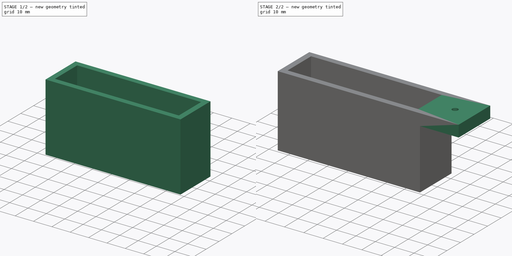
[diagram: build sequence overview — one tinted view per stage of 2, left to right]
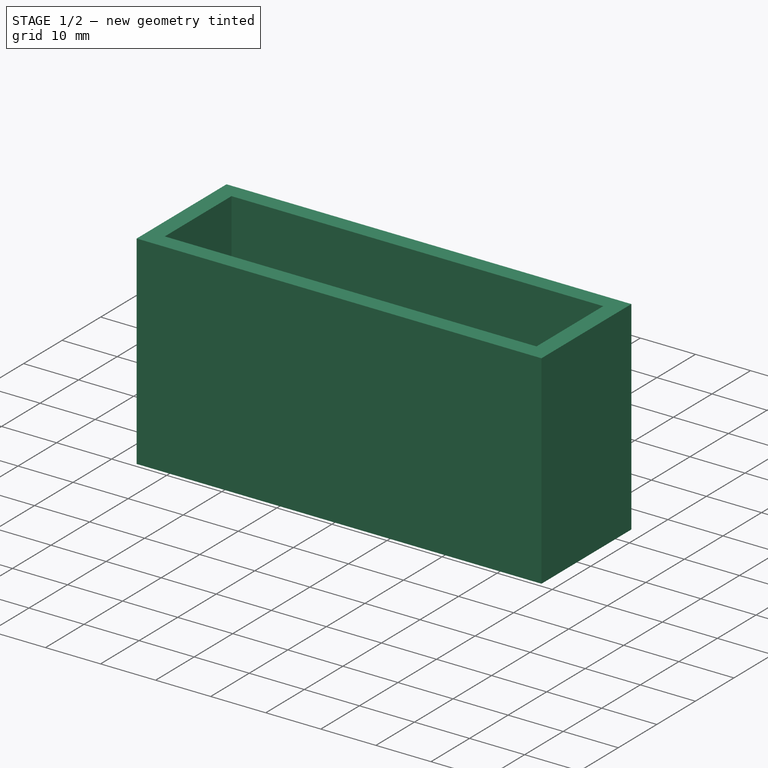
[diagram: stage 1 of 2 — iso view after this stage's code; geometry added in this stage tinted green]
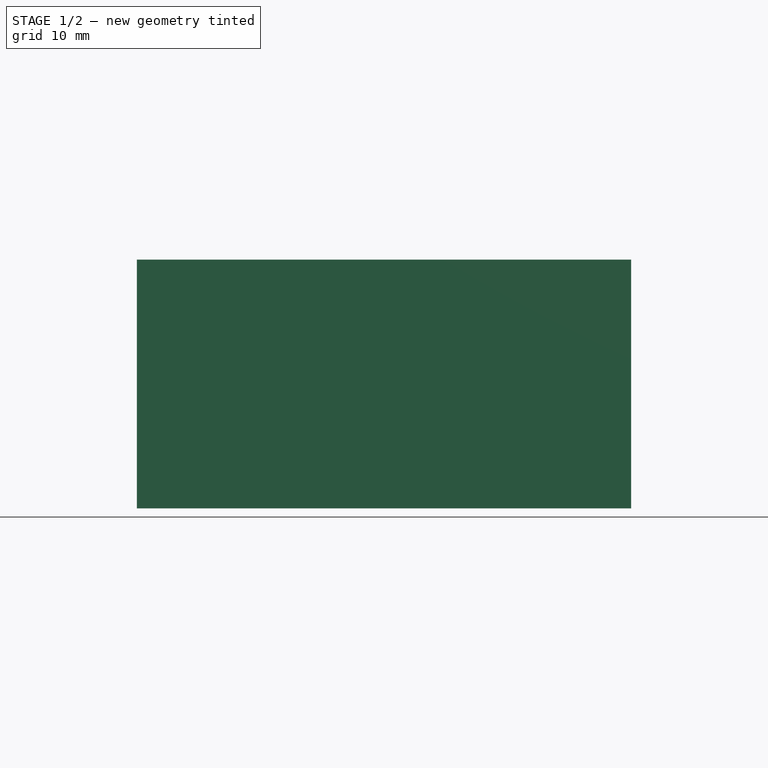
[diagram: stage 1 of 2 — front view after this stage's code; geometry added in this stage tinted green]
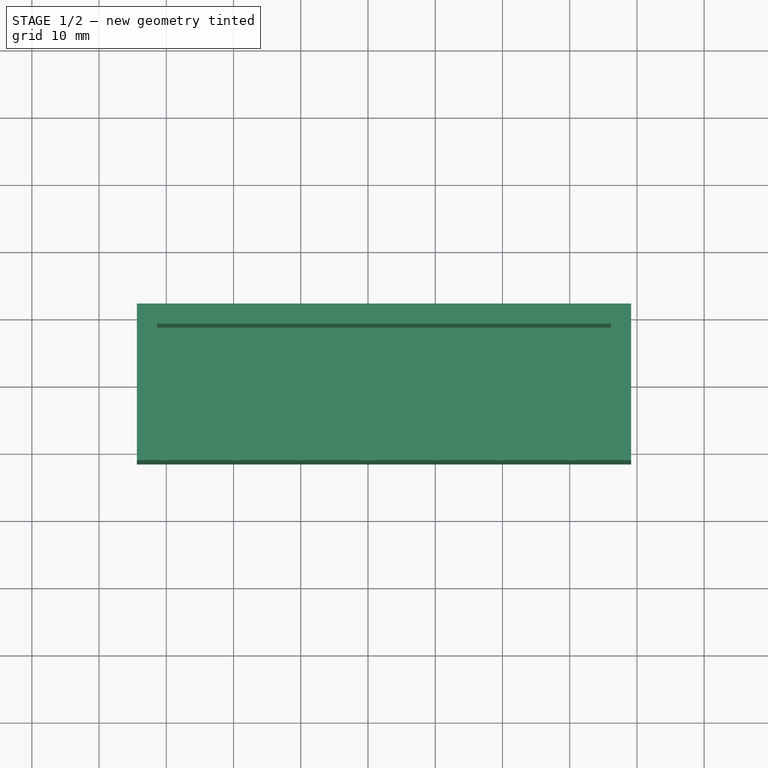
[diagram: stage 1 of 2 — top view after this stage's code; geometry added in this stage tinted green]
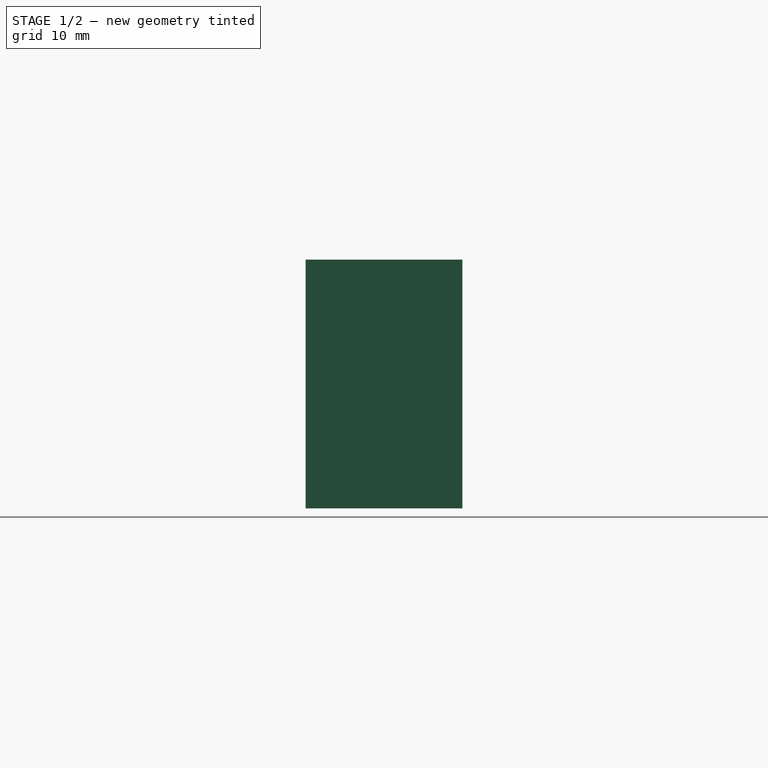
[diagram: stage 1 of 2 — right view after this stage's code; geometry added in this stage tinted green]
FCSTD DOCUMENT  (FreeCAD 1.0R39319 (Git))
Label: computer-case-raisers-Xigmatek-LUX-A-Shadow-Tempered-Glass-Mid-Tower
License: All rights reserved
LicenseURL: https://en.wikipedia.org/wiki/All_rights_reserved
objects: Sketcher::SketchObject×4, PartDesign::Pad×2, PartDesign::Pocket×2, App::VarSet×1, PartDesign::Body×1
note: 21 computed .brp shape members not serialized (recipe doc carries the construction recipe); baked Part::Feature solids carry a one-line shape summary decoded from their .brp

FEATURE [Sketcher::SketchObject] Sketch
  ArcFitTolerance = 1e-06
  AttachmentSupport = -> [XY_Plane]
  FullyConstrained = false
  MakeInternals = false
  MapMode = 5
  expr: Constraints[8] = VarSet.InnerLength + VarSet.Base_Thickness * 2
  expr: Constraints[9] = VarSet.Base_InnerWidth + VarSet.Base_Thickness * 2
  sketch-geometry (4):
    g0: LineSegment StartX=-34.3702 StartY=11.7644 StartZ=0 EndX=-34.3702 EndY=-11.5356 EndZ=0
    g1: LineSegment StartX=-34.3702 StartY=-11.5356 StartZ=0 EndX=39.1298 EndY=-11.5356 EndZ=0
    g2: LineSegment StartX=39.1298 StartY=-11.5356 StartZ=0 EndX=39.1298 EndY=11.7644 EndZ=0
    g3: LineSegment StartX=39.1298 StartY=11.7644 StartZ=0 EndX=-34.3702 EndY=11.7644 EndZ=0
  constraints (10):
    c: Coincident(g0,g1)
    c: Coincident(g1,g2)
    c: Coincident(g2,g3)
    c: Coincident(g3,g0)
    c: Vertical(g0)
    c: Vertical(g2)
    c: Horizontal(g1)
    c: Horizontal(g3)
    c: DistanceX(g3,g3) = 73.5
    c: DistanceY(g0,g0) = 23.3
FEATURE [App::VarSet] VarSet
  Base_Height = 37
  Base_InnerWidth = 17.3
  Base_Thickness = 3
  InnerLength = 67.5
  expr: InnerLength = 67.5
FEATURE [PartDesign::Pad] Pad
  Direction = (0,0,1)
  Length = 37
  Length2 = 10
  Profile = -> Sketch
  ReferenceAxis = -> Sketch [N_Axis]
  Refine = true
  Suppressed = false
  Type = 0
  expr: Length = VarSet.Base_Height
FEATURE [Sketcher::SketchObject] Sketch001
  ArcFitTolerance = 1e-06
  AttachmentSupport = -> [Pad]
  ExternalGeometry = -> [Pad]
  FullyConstrained = true
  MakeInternals = false
  MapMode = 5
  Placement = pos=(0,0,37) rot=(0,0,1;0rad)
  expr: Constraints[10] = VarSet.Base_InnerWidth
  expr: Constraints[11] = VarSet.InnerLength
  expr: Constraints[8] = VarSet.Base_Thickness
  expr: Constraints[9] = VarSet.Base_Thickness
  sketch-geometry (4):
    g0: LineSegment StartX=-31.3702 StartY=8.76443 StartZ=0 EndX=-31.3702 EndY=-8.53557 EndZ=0
    g1: LineSegment StartX=-31.3702 StartY=-8.53557 StartZ=0 EndX=36.1298 EndY=-8.53557 EndZ=0
    g2: LineSegment StartX=36.1298 StartY=-8.53557 StartZ=0 EndX=36.1298 EndY=8.76443 EndZ=0
    g3: LineSegment StartX=36.1298 StartY=8.76443 StartZ=0 EndX=-31.3702 EndY=8.76443 EndZ=0
  constraints (12):
    c: Coincident(g0,g1)
    c: Coincident(g1,g2)
    c: Coincident(g2,g3)
    c: Coincident(g3,g0)
    c: Vertical(g0)
    c: Vertical(g2)
    c: Horizontal(g1)
    c: Horizontal(g3)
    c: Distance(g-4,g0) = 3
    c: Distance(g-3,g3) = 3
    c: Distance(g2,g2) = 17.3
    c: DistanceX(g1,g1) = 67.5
FEATURE [PartDesign::Pocket] Pocket
  BaseFeature = -> Pad
  Direction = (0,0,-1)
  Length = 34
  Length2 = 5
  Profile = -> Sketch001
  ReferenceAxis = -> Sketch001 [N_Axis]
  Refine = true
  Suppressed = false
  Type = 0
  expr: Length = VarSet.Base_Height - VarSet.Base_Thickness
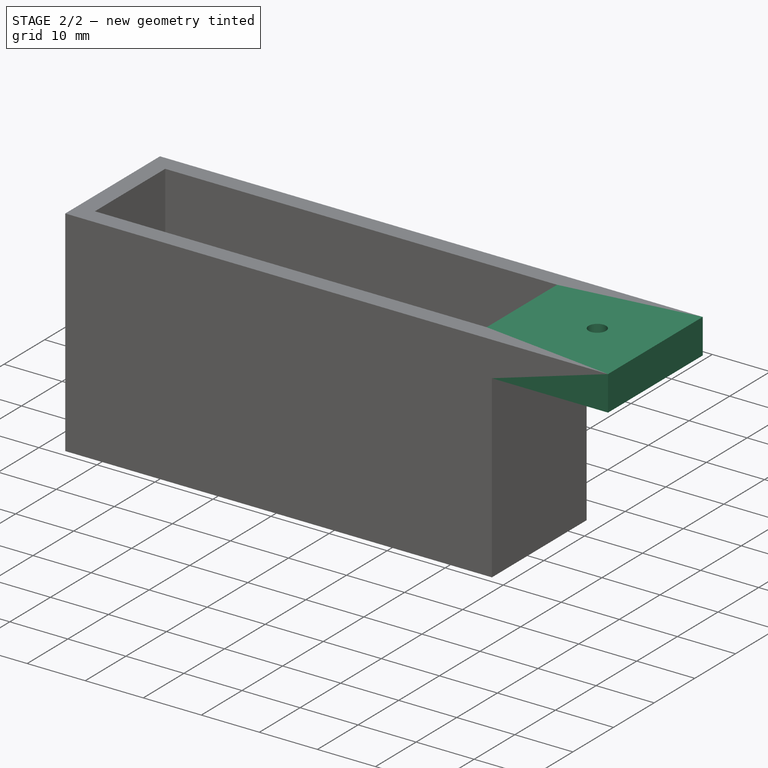
[diagram: stage 2 of 2 — iso view after this stage's code; geometry added in this stage tinted green]
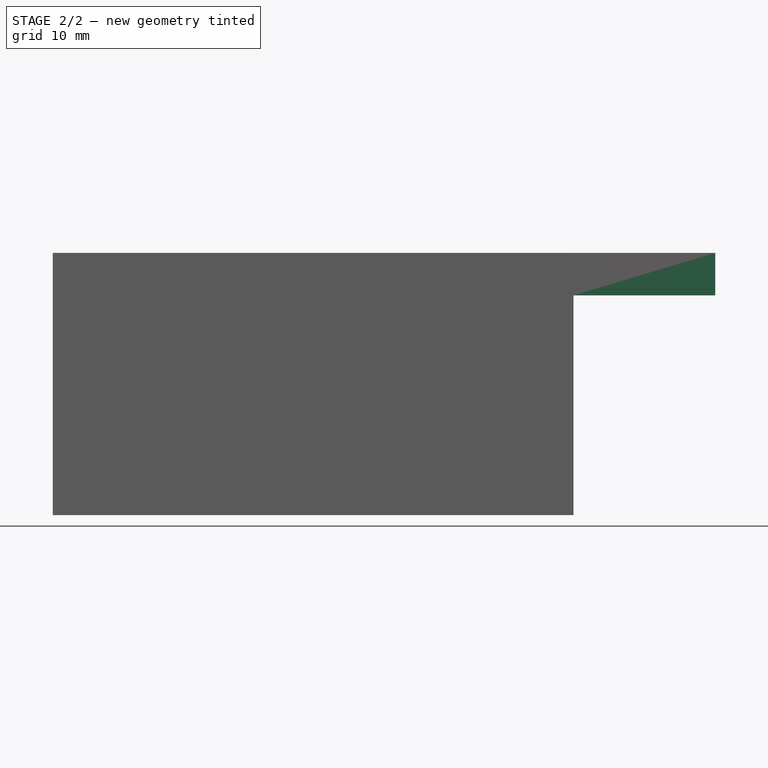
[diagram: stage 2 of 2 — front view after this stage's code; geometry added in this stage tinted green]
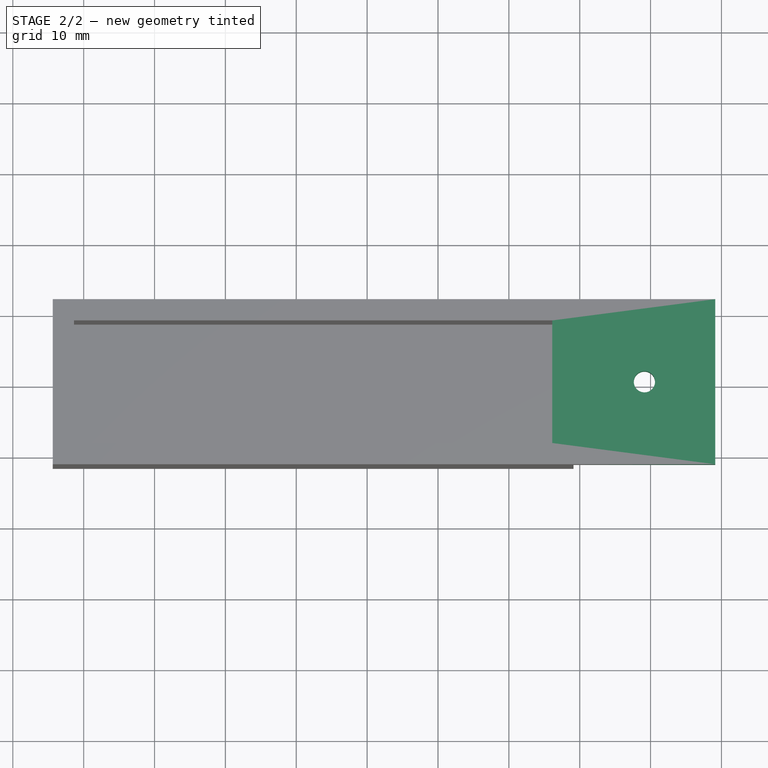
[diagram: stage 2 of 2 — top view after this stage's code; geometry added in this stage tinted green]
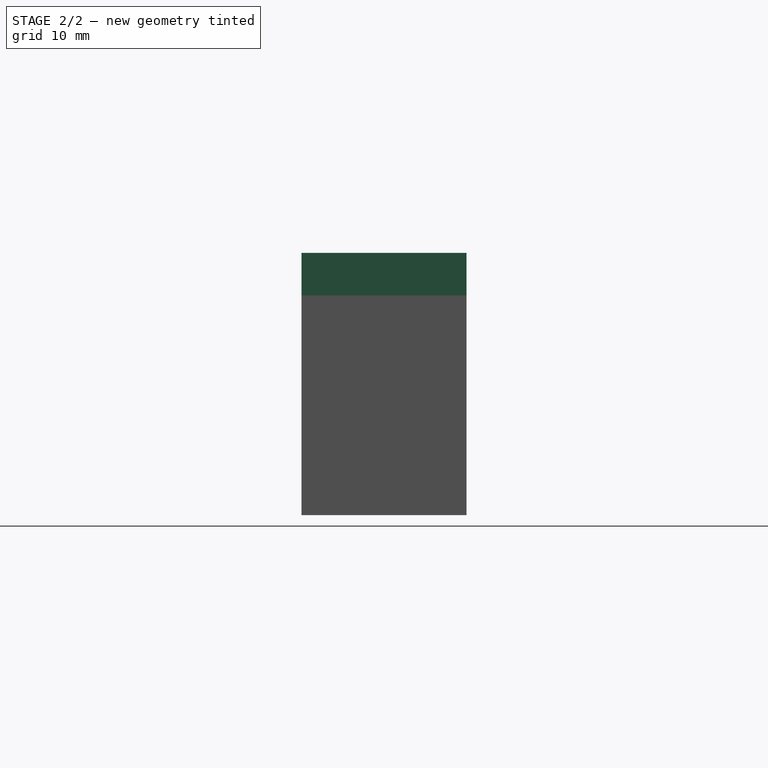
[diagram: stage 2 of 2 — right view after this stage's code; geometry added in this stage tinted green]
FEATURE [Sketcher::SketchObject] Sketch002
  ArcFitTolerance = 1e-06
  AttachmentSupport = -> [Pocket]
  ExternalGeometry = -> [Pocket]
  FullyConstrained = true
  MakeInternals = false
  MapMode = 5
  Placement = pos=(39.1298,0,0) rot=(0.57735,0.57735,0.57735;2.0944rad)
  expr: Constraints[10] = VarSet.Base_Thickness * 2
  expr: Constraints[9] = VarSet.Base_InnerWidth + VarSet.Base_Thickness * 2
  sketch-geometry (4):
    g0: LineSegment StartX=-11.5356 StartY=37 StartZ=0 EndX=-11.5356 EndY=31 EndZ=0
    g1: LineSegment StartX=-11.5356 StartY=31 StartZ=0 EndX=11.7644 EndY=31 EndZ=0
    g2: LineSegment StartX=11.7644 StartY=31 StartZ=0 EndX=11.7644 EndY=37 EndZ=0
    g3: LineSegment StartX=11.7644 StartY=37 StartZ=0 EndX=-11.5356 EndY=37 EndZ=0
  constraints (11):
    c: Coincident(g0,g1)
    c: Coincident(g1,g2)
    c: Coincident(g2,g3)
    c: Coincident(g3,g0)
    c: Vertical(g0)
    c: Vertical(g2)
    c: Horizontal(g1)
    c: Horizontal(g3)
    c: Coincident(g0,g-3)
    c: Distance(g3,g3) = 23.3
    c: Distance(g2,g2) = 6
FEATURE [PartDesign::Pad] Pad001
  BaseFeature = -> Pocket
  Direction = (1,0,0)
  Length = 20
  Length2 = 10
  Profile = -> Sketch002
  ReferenceAxis = -> Sketch002 [N_Axis]
  Refine = true
  Suppressed = false
  Type = 0
FEATURE [Sketcher::SketchObject] Sketch003
  ArcFitTolerance = 1e-06
  AttachmentSupport = -> [Pad001]
  ExternalGeometry = -> [Pad001]
  FullyConstrained = true
  MakeInternals = false
  MapMode = 5
  Placement = pos=(0,0,31) rot=(1,0,0;3.14159rad)
  sketch-geometry (2):
    g0: LineSegment [constr] StartX=49.1298 StartY=11.5356 StartZ=0 EndX=49.1298 EndY=-11.7644 EndZ=0
    g1: Circle CenterX=49.1298 CenterY=-0.114429 CenterZ=0 NormalX=0 NormalY=0 NormalZ=1 AngleXU=0 Radius=1.5
  constraints (4):
    c: Symmetric(g-3,g-3,g0)
    c: Symmetric(g-4,g-4,g0)
    c: Diameter(g1) = 3
    c: Symmetric(g0,g0,g1)
FEATURE [PartDesign::Pocket] Pocket001
  BaseFeature = -> Pad001
  Direction = (0,0,1)
  Length = 30
  Length2 = 5
  Profile = -> Sketch003
  ReferenceAxis = -> Sketch003 [N_Axis]
  Refine = true
  Suppressed = false
  Type = 0
FEATURE [PartDesign::Body] Body
  AllowCompound = false
  Group = -> [Sketch,VarSet,Pad,Sketch001,Pocket,Sketch002,Pad001,Sketch003,Pocket001]
  Origin = -> Origin
  Tip = -> Pocket001
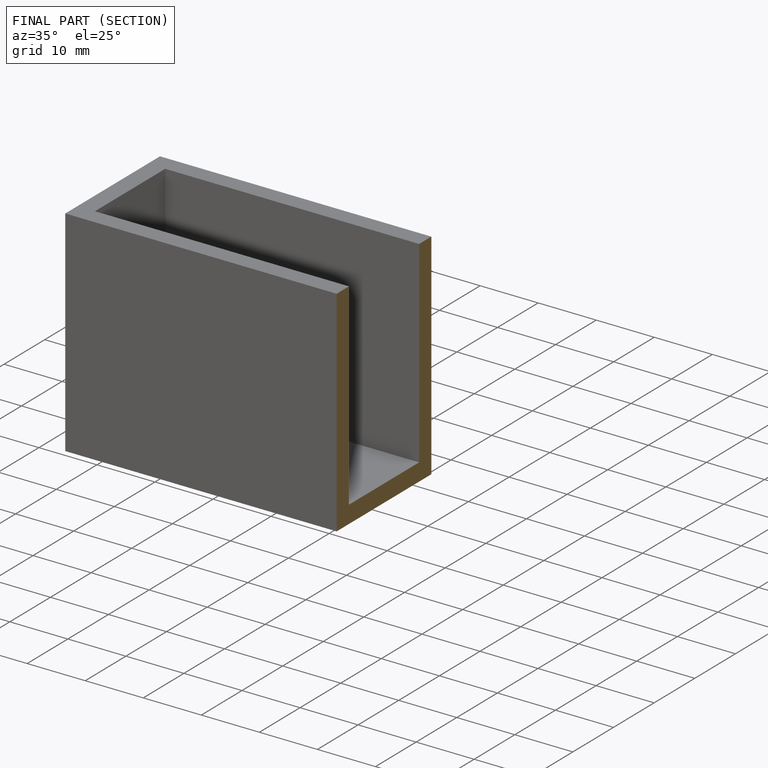
[diagram: finished part — half-section view (interior)]
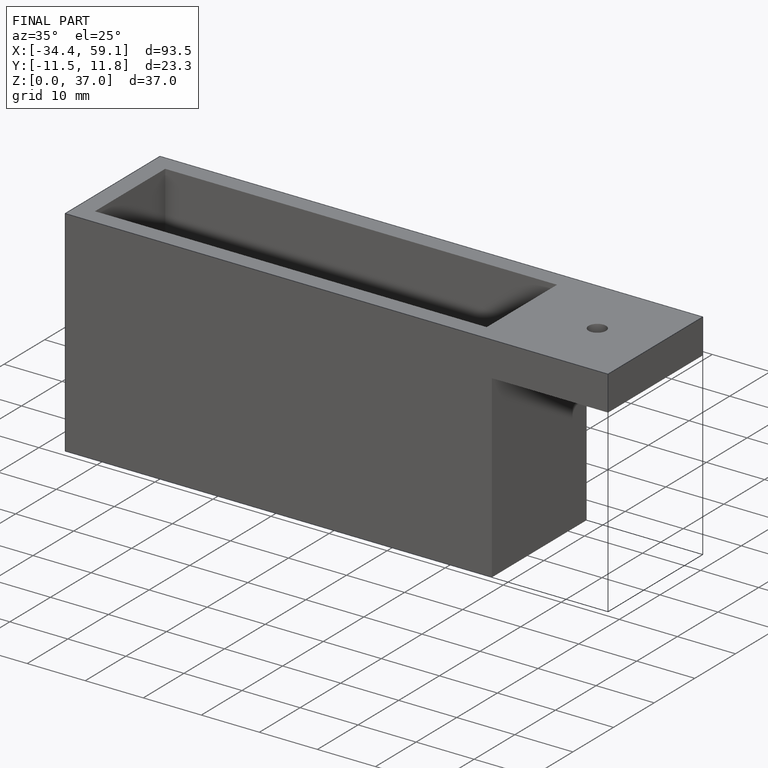
[diagram: finished part — iso view with bounding-box wireframe]
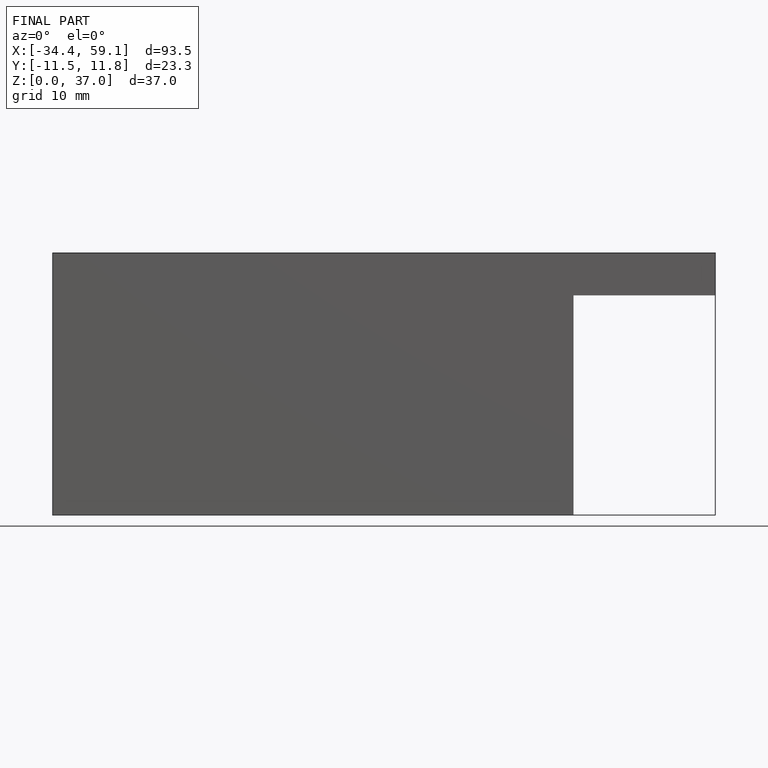
[diagram: finished part — front view with bounding-box wireframe]
